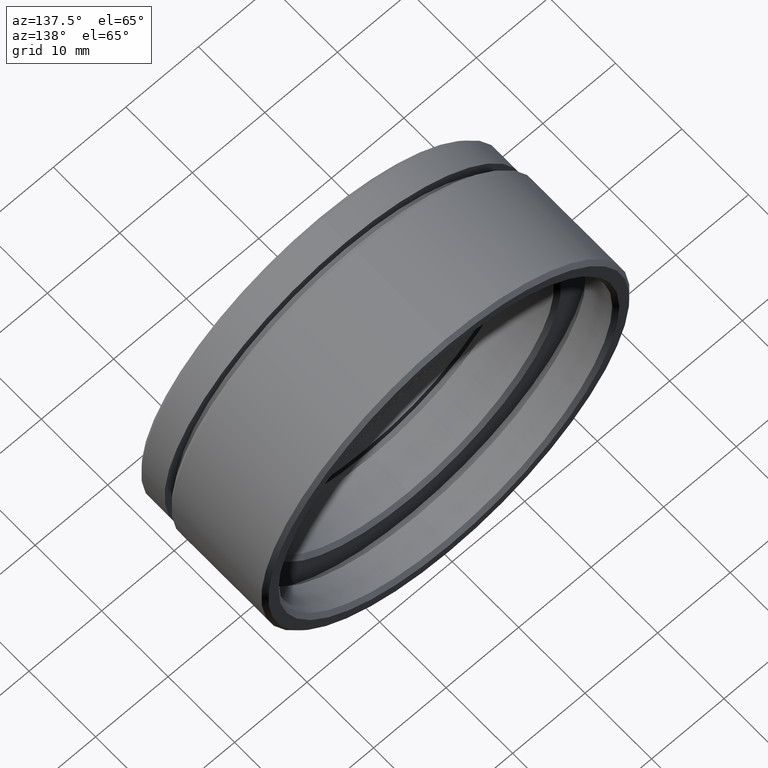
[diagram: clean part render]
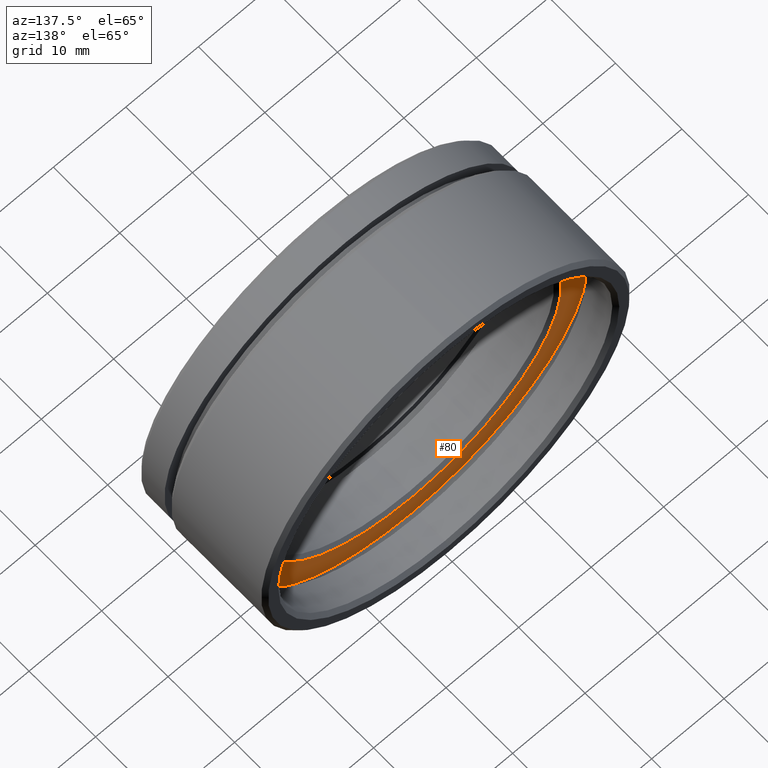
[diagram: same view with one face highlighted and labeled with its STEP entity id]
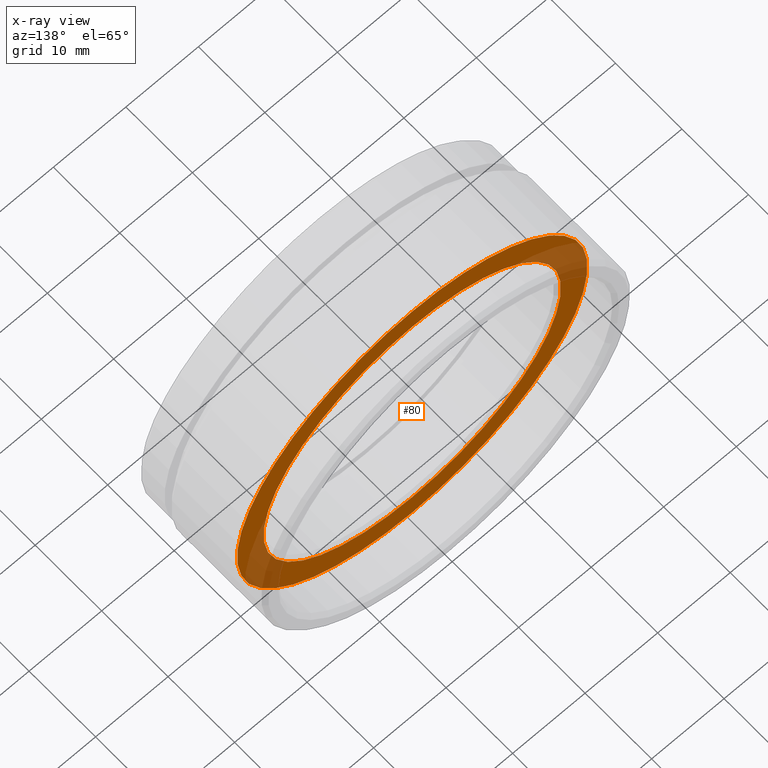
[diagram: x-ray of the same camera — body ghosted, the highlighted face saturated]
A machine part, auxiliary view. The second image highlights one B-rep face of the part: STEP entity #80.
The next image is the same camera in x-ray: the body ghosted, the highlighted face saturated — about 18% of this face is hidden behind the body in this view.
In plain terms, the highlighted planar face has unit normal (0, 1, 0).
Its self-contained STEP definition (entity closure, byte-faithful):
#22 = CARTESIAN_POINT ( 'NONE',  ( 0.0000000000000000000, 14.00000000000000000, 0.0000000000000000000 ) ) ;
#47 = AXIS2_PLACEMENT_3D ( 'NONE', #436, #1000, #964 ) ;
#49 = ORIENTED_EDGE ( 'NONE', *, *, #522, .F. ) ;
#68 = AXIS2_PLACEMENT_3D ( 'NONE', #22, #511, #120 ) ;
#80 = ADVANCED_FACE ( 'NONE', ( #814, #1059 ), #525, .T. ) ;
#110 = ORIENTED_EDGE ( 'NONE', *, *, #903, .T. ) ;
#116 = CARTESIAN_POINT ( 'NONE',  ( 0.0000000000000000000, 14.00000000000000000, 0.0000000000000000000 ) ) ;
#120 = DIRECTION ( 'NONE',  ( 0.0000000000000000000, 0.0000000000000000000, -1.000000000000000000 ) ) ;
#142 = ORIENTED_EDGE ( 'NONE', *, *, #1098, .T. ) ;
#169 = DIRECTION ( 'NONE',  ( -0.0000000000000000000, -1.000000000000000000, -0.0000000000000000000 ) ) ;
#200 = CIRCLE ( 'NONE', #995, 20.50000000000000400 ) ;
#205 = CARTESIAN_POINT ( 'NONE',  ( 0.0000000000000000000, 14.00000000000000000, -24.14999999999999900 ) ) ;
#208 = CARTESIAN_POINT ( 'NONE',  ( 2.957522019940857900E-015, 14.00000000000000000, 24.14999999999999900 ) ) ;
#215 = VERTEX_POINT ( 'NONE', #205 ) ;
#218 = DIRECTION ( 'NONE',  ( 0.0000000000000000000, 0.0000000000000000000, 1.000000000000000000 ) ) ;
#232 = CARTESIAN_POINT ( 'NONE',  ( 0.0000000000000000000, 14.00000000000000000, 20.50000000000000400 ) ) ;
#256 = VERTEX_POINT ( 'NONE', #208 ) ;
#286 = DIRECTION ( 'NONE',  ( 0.0000000000000000000, 0.0000000000000000000, -1.000000000000000000 ) ) ;
#368 = VERTEX_POINT ( 'NONE', #232 ) ;
#401 = CARTESIAN_POINT ( 'NONE',  ( 2.510525938252074500E-015, 14.00000000000000000, -20.50000000000000400 ) ) ;
#436 = CARTESIAN_POINT ( 'NONE',  ( 20.00000000000000000, 14.00000000000000000, 0.0000000000000000000 ) ) ;
#448 = EDGE_CURVE ( 'NONE', #215, #256, #1031, .T. ) ;
#480 = AXIS2_PLACEMENT_3D ( 'NONE', #582, #509, #833 ) ;
#488 = CIRCLE ( 'NONE', #68, 24.14999999999999900 ) ;
#500 = AXIS2_PLACEMENT_3D ( 'NONE', #116, #169, #286 ) ;
#509 = DIRECTION ( 'NONE',  ( -0.0000000000000000000, -1.000000000000000000, -0.0000000000000000000 ) ) ;
#511 = DIRECTION ( 'NONE',  ( -0.0000000000000000000, -1.000000000000000000, -0.0000000000000000000 ) ) ;
#522 = EDGE_CURVE ( 'NONE', #256, #215, #488, .T. ) ;
#525 = PLANE ( 'NONE',  #47 ) ;
#582 = CARTESIAN_POINT ( 'NONE',  ( 0.0000000000000000000, 14.00000000000000000, 0.0000000000000000000 ) ) ;
#607 = EDGE_LOOP ( 'NONE', ( #616, #49 ) ) ;
#616 = ORIENTED_EDGE ( 'NONE', *, *, #448, .F. ) ;
#655 = CARTESIAN_POINT ( 'NONE',  ( 0.0000000000000000000, 14.00000000000000000, 0.0000000000000000000 ) ) ;
#668 = CIRCLE ( 'NONE', #480, 20.50000000000000400 ) ;
#814 = FACE_BOUND ( 'NONE', #875, .T. ) ;
#833 = DIRECTION ( 'NONE',  ( 0.0000000000000000000, 0.0000000000000000000, 1.000000000000000000 ) ) ;
#859 = VERTEX_POINT ( 'NONE', #401 ) ;
#875 = EDGE_LOOP ( 'NONE', ( #142, #110 ) ) ;
#903 = EDGE_CURVE ( 'NONE', #859, #368, #200, .T. ) ;
#964 = DIRECTION ( 'NONE',  ( 0.0000000000000000000, -0.0000000000000000000, 1.000000000000000000 ) ) ;
#967 = DIRECTION ( 'NONE',  ( -0.0000000000000000000, -1.000000000000000000, -0.0000000000000000000 ) ) ;
#995 = AXIS2_PLACEMENT_3D ( 'NONE', #655, #967, #218 ) ;
#1000 = DIRECTION ( 'NONE',  ( 0.0000000000000000000, 1.000000000000000000, 0.0000000000000000000 ) ) ;
#1031 = CIRCLE ( 'NONE', #500, 24.14999999999999900 ) ;
#1059 = FACE_OUTER_BOUND ( 'NONE', #607, .T. ) ;
#1098 = EDGE_CURVE ( 'NONE', #368, #859, #668, .T. ) ;